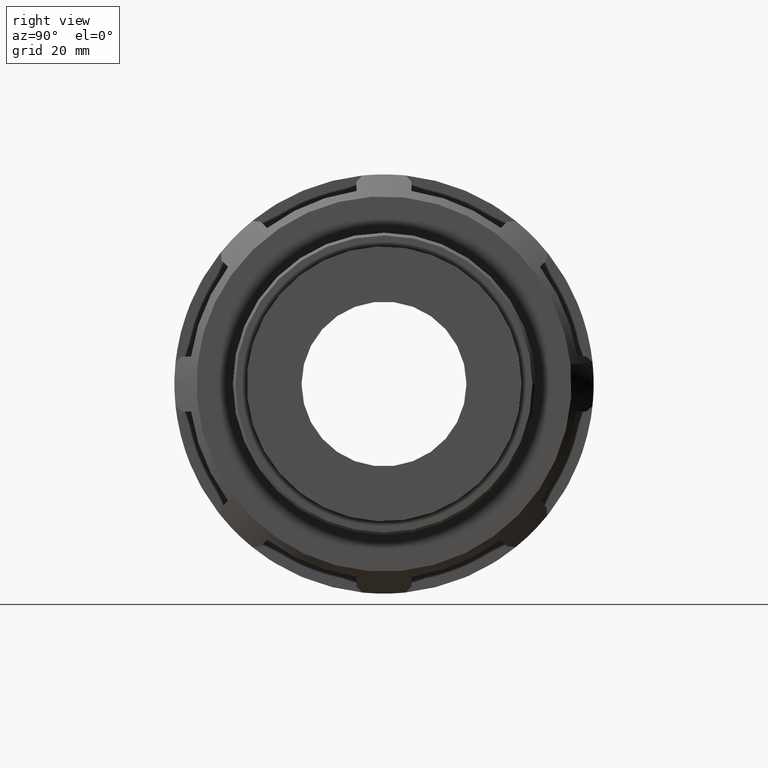
[diagram: clean part render]
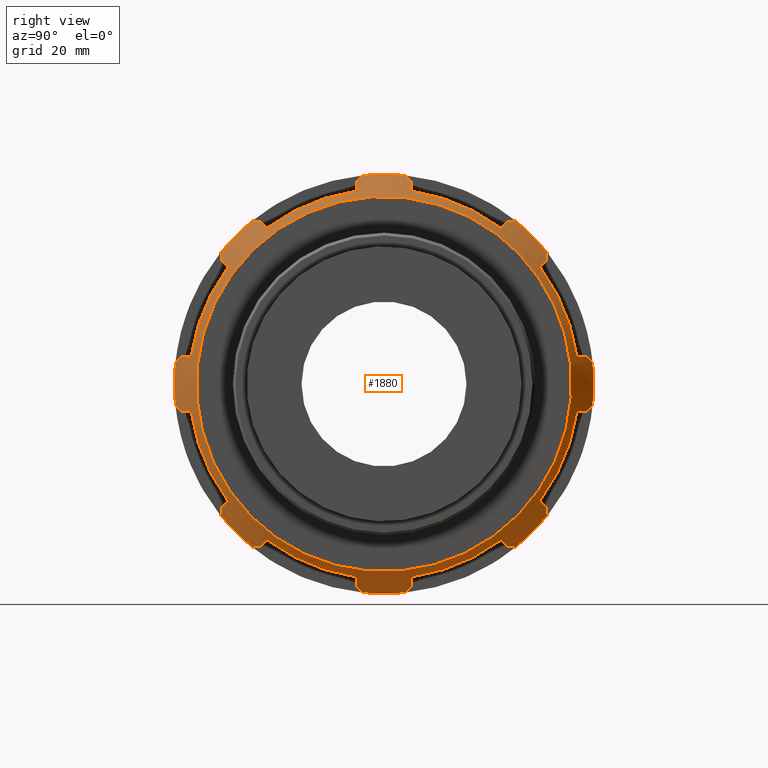
[diagram: same view with one face highlighted and labeled with its STEP entity id]
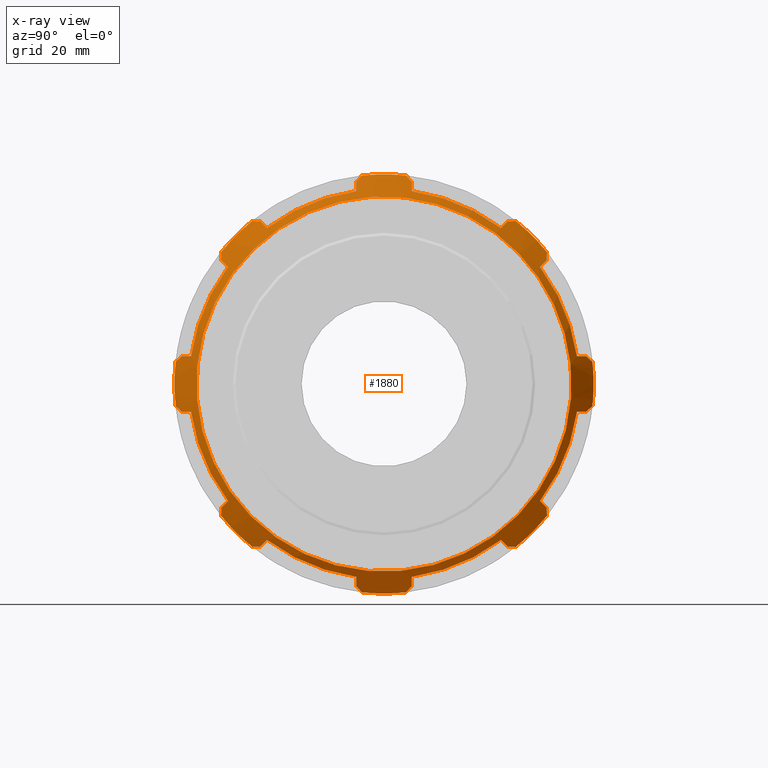
[diagram: x-ray of the same camera — body ghosted, the highlighted face saturated]
A machine part, right view. The second image highlights one B-rep face of the part: STEP entity #1880.
The next image is the same camera in x-ray: the body ghosted, the highlighted face saturated — about 0% of this face is hidden behind the body in this view.
In plain terms, the highlighted conical surface has half-angle 45 deg.
Its self-contained STEP definition (entity closure, byte-faithful):
#15=(
BOUNDED_CURVE()
B_SPLINE_CURVE(2,(#2909,#2910,#2911),.UNSPECIFIED.,.F.,.F.)
B_SPLINE_CURVE_WITH_KNOTS((3,3),(0.,0.296317603696153),.UNSPECIFIED.)
CURVE()
GEOMETRIC_REPRESENTATION_ITEM()
RATIONAL_B_SPLINE_CURVE((1.,1.0008870912547,1.00137929450637))
REPRESENTATION_ITEM('')
);
#16=(
BOUNDED_CURVE()
B_SPLINE_CURVE(2,(#2923,#2924,#2925),.UNSPECIFIED.,.F.,.F.)
B_SPLINE_CURVE_WITH_KNOTS((3,3),(1.03500040461365,1.33131800830983),
 .UNSPECIFIED.)
CURVE()
GEOMETRIC_REPRESENTATION_ITEM()
RATIONAL_B_SPLINE_CURVE((1.00137929450633,1.00088709125468,1.))
REPRESENTATION_ITEM('')
);
#17=(
BOUNDED_CURVE()
B_SPLINE_CURVE(2,(#2927,#2928,#2929),.UNSPECIFIED.,.F.,.F.)
B_SPLINE_CURVE_WITH_KNOTS((3,3),(5.92224695640004,6.45741023571535),
 .UNSPECIFIED.)
CURVE()
GEOMETRIC_REPRESENTATION_ITEM()
RATIONAL_B_SPLINE_CURVE((1.01093084007107,1.00842916952625,1.00538611331488))
REPRESENTATION_ITEM('')
);
#18=(
BOUNDED_CURVE()
B_SPLINE_CURVE(2,(#2933,#2934,#2935),.UNSPECIFIED.,.F.,.F.)
B_SPLINE_CURVE_WITH_KNOTS((3,3),(0.441248220962776,0.97641150027779),
 .UNSPECIFIED.)
CURVE()
GEOMETRIC_REPRESENTATION_ITEM()
RATIONAL_B_SPLINE_CURVE((1.00538611331492,1.00842916952631,1.01093084007114))
REPRESENTATION_ITEM('')
);
#19=(
BOUNDED_CURVE()
B_SPLINE_CURVE(2,(#2937,#2938,#2939),.UNSPECIFIED.,.F.,.F.)
B_SPLINE_CURVE_WITH_KNOTS((3,3),(0.,0.296317603696131),.UNSPECIFIED.)
CURVE()
GEOMETRIC_REPRESENTATION_ITEM()
RATIONAL_B_SPLINE_CURVE((1.,1.00088709125474,1.00137929450642))
REPRESENTATION_ITEM('')
);
#20=(
BOUNDED_CURVE()
B_SPLINE_CURVE(2,(#2943,#2944,#2945),.UNSPECIFIED.,.F.,.F.)
B_SPLINE_CURVE_WITH_KNOTS((3,3),(1.03500040461368,1.33131800830983),
 .UNSPECIFIED.)
CURVE()
GEOMETRIC_REPRESENTATION_ITEM()
RATIONAL_B_SPLINE_CURVE((1.00137929450641,1.00088709125473,1.))
REPRESENTATION_ITEM('')
);
#21=(
BOUNDED_CURVE()
B_SPLINE_CURVE(2,(#2947,#2948,#2949),.UNSPECIFIED.,.F.,.F.)
B_SPLINE_CURVE_WITH_KNOTS((3,3),(5.92224695640033,6.45741023571553),
 .UNSPECIFIED.)
CURVE()
GEOMETRIC_REPRESENTATION_ITEM()
RATIONAL_B_SPLINE_CURVE((1.01093084007113,1.0084291695263,1.00538611331492))
REPRESENTATION_ITEM('')
);
#22=(
BOUNDED_CURVE()
B_SPLINE_CURVE(2,(#2953,#2954,#2955),.UNSPECIFIED.,.F.,.F.)
B_SPLINE_CURVE_WITH_KNOTS((3,3),(0.441248220959732,0.976411500271163),
 .UNSPECIFIED.)
CURVE()
GEOMETRIC_REPRESENTATION_ITEM()
RATIONAL_B_SPLINE_CURVE((1.0053861133142,1.00842916952518,1.01093084006968))
REPRESENTATION_ITEM('')
);
#23=(
BOUNDED_CURVE()
B_SPLINE_CURVE(2,(#2957,#2958,#2959),.UNSPECIFIED.,.F.,.F.)
B_SPLINE_CURVE_WITH_KNOTS((3,3),(0.,0.296317603696123),.UNSPECIFIED.)
CURVE()
GEOMETRIC_REPRESENTATION_ITEM()
RATIONAL_B_SPLINE_CURVE((1.,1.00088709125475,1.00137929450644))
REPRESENTATION_ITEM('')
);
#24=(
BOUNDED_CURVE()
B_SPLINE_CURVE(2,(#2963,#2964,#2965),.UNSPECIFIED.,.F.,.F.)
B_SPLINE_CURVE_WITH_KNOTS((3,3),(1.03500040461367,1.33131800830983),
 .UNSPECIFIED.)
CURVE()
GEOMETRIC_REPRESENTATION_ITEM()
RATIONAL_B_SPLINE_CURVE((1.00137929450636,1.00088709125469,1.))
REPRESENTATION_ITEM('')
);
#25=(
BOUNDED_CURVE()
B_SPLINE_CURVE(2,(#2967,#2968,#2969),.UNSPECIFIED.,.F.,.F.)
B_SPLINE_CURVE_WITH_KNOTS((3,3),(5.92224695641519,6.45741023572233),
 .UNSPECIFIED.)
CURVE()
GEOMETRIC_REPRESENTATION_ITEM()
RATIONAL_B_SPLINE_CURVE((1.01093084006777,1.0084291695237,1.00538611331325))
REPRESENTATION_ITEM('')
);
#26=(
BOUNDED_CURVE()
B_SPLINE_CURVE(2,(#2973,#2974,#2975),.UNSPECIFIED.,.F.,.F.)
B_SPLINE_CURVE_WITH_KNOTS((3,3),(0.441248220963082,0.976411500278279),
 .UNSPECIFIED.)
CURVE()
GEOMETRIC_REPRESENTATION_ITEM()
RATIONAL_B_SPLINE_CURVE((1.00538611331483,1.00842916952616,1.01093084007095))
REPRESENTATION_ITEM('')
);
#27=(
BOUNDED_CURVE()
B_SPLINE_CURVE(2,(#2977,#2978,#2979),.UNSPECIFIED.,.F.,.F.)
B_SPLINE_CURVE_WITH_KNOTS((3,3),(0.,0.296317603696127),.UNSPECIFIED.)
CURVE()
GEOMETRIC_REPRESENTATION_ITEM()
RATIONAL_B_SPLINE_CURVE((1.,1.00088709125473,1.00137929450641))
REPRESENTATION_ITEM('')
);
#28=(
BOUNDED_CURVE()
B_SPLINE_CURVE(2,(#2983,#2984,#2985),.UNSPECIFIED.,.F.,.F.)
B_SPLINE_CURVE_WITH_KNOTS((3,3),(1.0350004046137,1.33131800830982),
 .UNSPECIFIED.)
CURVE()
GEOMETRIC_REPRESENTATION_ITEM()
RATIONAL_B_SPLINE_CURVE((1.00137929450644,1.00088709125475,1.))
REPRESENTATION_ITEM('')
);
#29=(
BOUNDED_CURVE()
B_SPLINE_CURVE(2,(#2987,#2988,#2989),.UNSPECIFIED.,.F.,.F.)
B_SPLINE_CURVE_WITH_KNOTS((3,3),(5.92224695640035,6.45741023571554),
 .UNSPECIFIED.)
CURVE()
GEOMETRIC_REPRESENTATION_ITEM()
RATIONAL_B_SPLINE_CURVE((1.01093084007114,1.0084291695263,1.00538611331492))
REPRESENTATION_ITEM('')
);
#30=(
BOUNDED_CURVE()
B_SPLINE_CURVE(2,(#2993,#2994,#2995),.UNSPECIFIED.,.F.,.F.)
B_SPLINE_CURVE_WITH_KNOTS((3,3),(0.441248220962538,0.976411500277454),
 .UNSPECIFIED.)
CURVE()
GEOMETRIC_REPRESENTATION_ITEM()
RATIONAL_B_SPLINE_CURVE((1.00538611331504,1.0084291695265,1.01093084007139))
REPRESENTATION_ITEM('')
);
#31=(
BOUNDED_CURVE()
B_SPLINE_CURVE(2,(#2997,#2998,#2999),.UNSPECIFIED.,.F.,.F.)
B_SPLINE_CURVE_WITH_KNOTS((3,3),(0.,0.296317603696122),.UNSPECIFIED.)
CURVE()
GEOMETRIC_REPRESENTATION_ITEM()
RATIONAL_B_SPLINE_CURVE((1.,1.00088709125475,1.00137929450644))
REPRESENTATION_ITEM('')
);
#32=(
BOUNDED_CURVE()
B_SPLINE_CURVE(2,(#3003,#3004,#3005),.UNSPECIFIED.,.F.,.F.)
B_SPLINE_CURVE_WITH_KNOTS((3,3),(1.03500040461368,1.33131800830983),
 .UNSPECIFIED.)
CURVE()
GEOMETRIC_REPRESENTATION_ITEM()
RATIONAL_B_SPLINE_CURVE((1.00137929450639,1.00088709125472,1.))
REPRESENTATION_ITEM('')
);
#33=(
BOUNDED_CURVE()
B_SPLINE_CURVE(2,(#3007,#3008,#3009),.UNSPECIFIED.,.F.,.F.)
B_SPLINE_CURVE_WITH_KNOTS((3,3),(5.92224695641462,6.45741023572197),
 .UNSPECIFIED.)
CURVE()
GEOMETRIC_REPRESENTATION_ITEM()
RATIONAL_B_SPLINE_CURVE((1.01093084006751,1.0084291695235,1.00538611331312))
REPRESENTATION_ITEM('')
);
#34=(
BOUNDED_CURVE()
B_SPLINE_CURVE(2,(#3013,#3014,#3015),.UNSPECIFIED.,.F.,.F.)
B_SPLINE_CURVE_WITH_KNOTS((3,3),(0.441248220963007,0.976411500278079),
 .UNSPECIFIED.)
CURVE()
GEOMETRIC_REPRESENTATION_ITEM()
RATIONAL_B_SPLINE_CURVE((1.00538611331478,1.00842916952608,1.01093084007085))
REPRESENTATION_ITEM('')
);
#35=(
BOUNDED_CURVE()
B_SPLINE_CURVE(2,(#3017,#3018,#3019),.UNSPECIFIED.,.F.,.F.)
B_SPLINE_CURVE_WITH_KNOTS((3,3),(0.,0.296317603696161),.UNSPECIFIED.)
CURVE()
GEOMETRIC_REPRESENTATION_ITEM()
RATIONAL_B_SPLINE_CURVE((1.,1.0008870912547,1.00137929450636))
REPRESENTATION_ITEM('')
);
#36=(
BOUNDED_CURVE()
B_SPLINE_CURVE(2,(#3023,#3024,#3025),.UNSPECIFIED.,.F.,.F.)
B_SPLINE_CURVE_WITH_KNOTS((3,3),(1.03500040461369,1.33131800830983),
 .UNSPECIFIED.)
CURVE()
GEOMETRIC_REPRESENTATION_ITEM()
RATIONAL_B_SPLINE_CURVE((1.0013792945064,1.00088709125472,1.))
REPRESENTATION_ITEM('')
);
#37=(
BOUNDED_CURVE()
B_SPLINE_CURVE(2,(#3027,#3028,#3029),.UNSPECIFIED.,.F.,.F.)
B_SPLINE_CURVE_WITH_KNOTS((3,3),(5.92224695640072,6.45741023571574),
 .UNSPECIFIED.)
CURVE()
GEOMETRIC_REPRESENTATION_ITEM()
RATIONAL_B_SPLINE_CURVE((1.01093084007118,1.00842916952634,1.00538611331494))
REPRESENTATION_ITEM('')
);
#38=(
BOUNDED_CURVE()
B_SPLINE_CURVE(2,(#3033,#3034,#3035),.UNSPECIFIED.,.F.,.F.)
B_SPLINE_CURVE_WITH_KNOTS((3,3),(0.441248220959889,0.976411500271393),
 .UNSPECIFIED.)
CURVE()
GEOMETRIC_REPRESENTATION_ITEM()
RATIONAL_B_SPLINE_CURVE((1.00538611331413,1.00842916952507,1.01093084006954))
REPRESENTATION_ITEM('')
);
#39=(
BOUNDED_CURVE()
B_SPLINE_CURVE(2,(#3037,#3038,#3039),.UNSPECIFIED.,.F.,.F.)
B_SPLINE_CURVE_WITH_KNOTS((3,3),(0.,0.29631760369613),.UNSPECIFIED.)
CURVE()
GEOMETRIC_REPRESENTATION_ITEM()
RATIONAL_B_SPLINE_CURVE((1.,1.00088709125476,1.00137929450645))
REPRESENTATION_ITEM('')
);
#40=(
BOUNDED_CURVE()
B_SPLINE_CURVE(2,(#3043,#3044,#3045),.UNSPECIFIED.,.F.,.F.)
B_SPLINE_CURVE_WITH_KNOTS((3,3),(1.03500040461367,1.33131800830983),
 .UNSPECIFIED.)
CURVE()
GEOMETRIC_REPRESENTATION_ITEM()
RATIONAL_B_SPLINE_CURVE((1.00137929450639,1.00088709125471,1.))
REPRESENTATION_ITEM('')
);
#41=(
BOUNDED_CURVE()
B_SPLINE_CURVE(2,(#3047,#3048,#3049),.UNSPECIFIED.,.F.,.F.)
B_SPLINE_CURVE_WITH_KNOTS((3,3),(5.92224695639378,6.45741023571239),
 .UNSPECIFIED.)
CURVE()
GEOMETRIC_REPRESENTATION_ITEM()
RATIONAL_B_SPLINE_CURVE((1.01093084007212,1.00842916952707,1.00538611331541))
REPRESENTATION_ITEM('')
);
#42=(
BOUNDED_CURVE()
B_SPLINE_CURVE(2,(#3053,#3054,#3055),.UNSPECIFIED.,.F.,.F.)
B_SPLINE_CURVE_WITH_KNOTS((3,3),(0.441248220963007,0.976411500278079),
 .UNSPECIFIED.)
CURVE()
GEOMETRIC_REPRESENTATION_ITEM()
RATIONAL_B_SPLINE_CURVE((1.00538611331478,1.00842916952608,1.01093084007085))
REPRESENTATION_ITEM('')
);
#43=(
BOUNDED_CURVE()
B_SPLINE_CURVE(2,(#3057,#3058,#3059),.UNSPECIFIED.,.F.,.F.)
B_SPLINE_CURVE_WITH_KNOTS((3,3),(0.,0.296317603696118),.UNSPECIFIED.)
CURVE()
GEOMETRIC_REPRESENTATION_ITEM()
RATIONAL_B_SPLINE_CURVE((1.,1.00088709125475,1.00137929450644))
REPRESENTATION_ITEM('')
);
#44=(
BOUNDED_CURVE()
B_SPLINE_CURVE(2,(#3063,#3064,#3065),.UNSPECIFIED.,.F.,.F.)
B_SPLINE_CURVE_WITH_KNOTS((3,3),(1.03500040461369,1.33131800830983),
 .UNSPECIFIED.)
CURVE()
GEOMETRIC_REPRESENTATION_ITEM()
RATIONAL_B_SPLINE_CURVE((1.0013792945064,1.00088709125472,1.))
REPRESENTATION_ITEM('')
);
#45=(
BOUNDED_CURVE()
B_SPLINE_CURVE(2,(#3067,#3068,#3069),.UNSPECIFIED.,.F.,.F.)
B_SPLINE_CURVE_WITH_KNOTS((3,3),(5.92224695640071,6.45741023571574),
 .UNSPECIFIED.)
CURVE()
GEOMETRIC_REPRESENTATION_ITEM()
RATIONAL_B_SPLINE_CURVE((1.01093084007118,1.00842916952634,1.00538611331494))
REPRESENTATION_ITEM('')
);
#46=(
BOUNDED_CURVE()
B_SPLINE_CURVE(2,(#3072,#3073,#3074),.UNSPECIFIED.,.F.,.F.)
B_SPLINE_CURVE_WITH_KNOTS((3,3),(0.441248220959914,0.976411500271437),
 .UNSPECIFIED.)
CURVE()
GEOMETRIC_REPRESENTATION_ITEM()
RATIONAL_B_SPLINE_CURVE((1.00538611331412,1.00842916952506,1.01093084006953))
REPRESENTATION_ITEM('')
);
#49=CONICAL_SURFACE('',#2020,63.48464,45.);
#57=FACE_BOUND('',#341,.T.);
#105=CIRCLE('',#2021,59.96928);
#106=CIRCLE('',#2022,67.);
#107=CIRCLE('',#2023,62.31);
#108=CIRCLE('',#2024,67.);
#109=CIRCLE('',#2025,62.31);
#110=CIRCLE('',#2026,67.);
#111=CIRCLE('',#2027,62.31);
#112=CIRCLE('',#2028,67.);
#113=CIRCLE('',#2029,62.31);
#114=CIRCLE('',#2030,67.);
#115=CIRCLE('',#2031,62.31);
#116=CIRCLE('',#2032,67.);
#117=CIRCLE('',#2033,62.31);
#118=CIRCLE('',#2034,67.);
#119=CIRCLE('',#2035,62.31);
#120=CIRCLE('',#2036,67.);
#121=CIRCLE('',#2037,62.31);
#226=FACE_OUTER_BOUND('',#340,.T.);
#340=EDGE_LOOP('',(#1445));
#341=EDGE_LOOP('',(#1446,#1447,#1448,#1449,#1450,#1451,#1452,#1453,#1454,
#1455,#1456,#1457,#1458,#1459,#1460,#1461,#1462,#1463,#1464,#1465,#1466,
#1467,#1468,#1469,#1470,#1471,#1472,#1473,#1474,#1475,#1476,#1477,#1478,
#1479,#1480,#1481,#1482,#1483,#1484,#1485,#1486,#1487,#1488,#1489,#1490,
#1491,#1492,#1493));
#829=VERTEX_POINT('',#2907);
#830=VERTEX_POINT('',#2908);
#833=VERTEX_POINT('',#2918);
#834=VERTEX_POINT('',#2920);
#835=VERTEX_POINT('',#2922);
#836=VERTEX_POINT('',#2926);
#837=VERTEX_POINT('',#2930);
#838=VERTEX_POINT('',#2932);
#839=VERTEX_POINT('',#2936);
#840=VERTEX_POINT('',#2940);
#841=VERTEX_POINT('',#2942);
#842=VERTEX_POINT('',#2946);
#843=VERTEX_POINT('',#2950);
#844=VERTEX_POINT('',#2952);
#845=VERTEX_POINT('',#2956);
#846=VERTEX_POINT('',#2960);
#847=VERTEX_POINT('',#2962);
#848=VERTEX_POINT('',#2966);
#849=VERTEX_POINT('',#2970);
#850=VERTEX_POINT('',#2972);
#851=VERTEX_POINT('',#2976);
#852=VERTEX_POINT('',#2980);
#853=VERTEX_POINT('',#2982);
#854=VERTEX_POINT('',#2986);
#855=VERTEX_POINT('',#2990);
#856=VERTEX_POINT('',#2992);
#857=VERTEX_POINT('',#2996);
#858=VERTEX_POINT('',#3000);
#859=VERTEX_POINT('',#3002);
#860=VERTEX_POINT('',#3006);
#861=VERTEX_POINT('',#3010);
#862=VERTEX_POINT('',#3012);
#863=VERTEX_POINT('',#3016);
#864=VERTEX_POINT('',#3020);
#865=VERTEX_POINT('',#3022);
#866=VERTEX_POINT('',#3026);
#867=VERTEX_POINT('',#3030);
#868=VERTEX_POINT('',#3032);
#869=VERTEX_POINT('',#3036);
#870=VERTEX_POINT('',#3040);
#871=VERTEX_POINT('',#3042);
#872=VERTEX_POINT('',#3046);
#873=VERTEX_POINT('',#3050);
#874=VERTEX_POINT('',#3052);
#875=VERTEX_POINT('',#3056);
#876=VERTEX_POINT('',#3060);
#877=VERTEX_POINT('',#3062);
#878=VERTEX_POINT('',#3066);
#879=VERTEX_POINT('',#3070);
#1055=EDGE_CURVE('',#829,#830,#15,.T.);
#1059=EDGE_CURVE('',#833,#833,#105,.T.);
#1060=EDGE_CURVE('',#829,#834,#106,.T.);
#1061=EDGE_CURVE('',#835,#834,#16,.T.);
#1062=EDGE_CURVE('',#835,#836,#17,.T.);
#1063=EDGE_CURVE('',#836,#837,#107,.T.);
#1064=EDGE_CURVE('',#837,#838,#18,.T.);
#1065=EDGE_CURVE('',#839,#838,#19,.T.);
#1066=EDGE_CURVE('',#839,#840,#108,.T.);
#1067=EDGE_CURVE('',#841,#840,#20,.T.);
#1068=EDGE_CURVE('',#841,#842,#21,.T.);
#1069=EDGE_CURVE('',#842,#843,#109,.T.);
#1070=EDGE_CURVE('',#843,#844,#22,.T.);
#1071=EDGE_CURVE('',#845,#844,#23,.T.);
#1072=EDGE_CURVE('',#845,#846,#110,.T.);
#1073=EDGE_CURVE('',#847,#846,#24,.T.);
#1074=EDGE_CURVE('',#847,#848,#25,.T.);
#1075=EDGE_CURVE('',#848,#849,#111,.T.);
#1076=EDGE_CURVE('',#849,#850,#26,.T.);
#1077=EDGE_CURVE('',#851,#850,#27,.T.);
#1078=EDGE_CURVE('',#851,#852,#112,.T.);
#1079=EDGE_CURVE('',#853,#852,#28,.T.);
#1080=EDGE_CURVE('',#853,#854,#29,.T.);
#1081=EDGE_CURVE('',#854,#855,#113,.T.);
#1082=EDGE_CURVE('',#855,#856,#30,.T.);
#1083=EDGE_CURVE('',#857,#856,#31,.T.);
#1084=EDGE_CURVE('',#857,#858,#114,.T.);
#1085=EDGE_CURVE('',#859,#858,#32,.T.);
#1086=EDGE_CURVE('',#859,#860,#33,.T.);
#1087=EDGE_CURVE('',#860,#861,#115,.T.);
#1088=EDGE_CURVE('',#861,#862,#34,.T.);
#1089=EDGE_CURVE('',#863,#862,#35,.T.);
#1090=EDGE_CURVE('',#863,#864,#116,.T.);
#1091=EDGE_CURVE('',#865,#864,#36,.T.);
#1092=EDGE_CURVE('',#865,#866,#37,.T.);
#1093=EDGE_CURVE('',#866,#867,#117,.T.);
#1094=EDGE_CURVE('',#867,#868,#38,.T.);
#1095=EDGE_CURVE('',#869,#868,#39,.T.);
#1096=EDGE_CURVE('',#869,#870,#118,.T.);
#1097=EDGE_CURVE('',#871,#870,#40,.T.);
#1098=EDGE_CURVE('',#871,#872,#41,.T.);
#1099=EDGE_CURVE('',#872,#873,#119,.T.);
#1100=EDGE_CURVE('',#873,#874,#42,.T.);
#1101=EDGE_CURVE('',#875,#874,#43,.T.);
#1102=EDGE_CURVE('',#875,#876,#120,.T.);
#1103=EDGE_CURVE('',#877,#876,#44,.T.);
#1104=EDGE_CURVE('',#877,#878,#45,.T.);
#1105=EDGE_CURVE('',#878,#879,#121,.T.);
#1106=EDGE_CURVE('',#879,#830,#46,.T.);
#1445=ORIENTED_EDGE('',*,*,#1059,.T.);
#1446=ORIENTED_EDGE('',*,*,#1055,.F.);
#1447=ORIENTED_EDGE('',*,*,#1060,.T.);
#1448=ORIENTED_EDGE('',*,*,#1061,.F.);
#1449=ORIENTED_EDGE('',*,*,#1062,.T.);
#1450=ORIENTED_EDGE('',*,*,#1063,.T.);
#1451=ORIENTED_EDGE('',*,*,#1064,.T.);
#1452=ORIENTED_EDGE('',*,*,#1065,.F.);
#1453=ORIENTED_EDGE('',*,*,#1066,.T.);
#1454=ORIENTED_EDGE('',*,*,#1067,.F.);
#1455=ORIENTED_EDGE('',*,*,#1068,.T.);
#1456=ORIENTED_EDGE('',*,*,#1069,.T.);
#1457=ORIENTED_EDGE('',*,*,#1070,.T.);
#1458=ORIENTED_EDGE('',*,*,#1071,.F.);
#1459=ORIENTED_EDGE('',*,*,#1072,.T.);
#1460=ORIENTED_EDGE('',*,*,#1073,.F.);
#1461=ORIENTED_EDGE('',*,*,#1074,.T.);
#1462=ORIENTED_EDGE('',*,*,#1075,.T.);
#1463=ORIENTED_EDGE('',*,*,#1076,.T.);
#1464=ORIENTED_EDGE('',*,*,#1077,.F.);
#1465=ORIENTED_EDGE('',*,*,#1078,.T.);
#1466=ORIENTED_EDGE('',*,*,#1079,.F.);
#1467=ORIENTED_EDGE('',*,*,#1080,.T.);
#1468=ORIENTED_EDGE('',*,*,#1081,.T.);
#1469=ORIENTED_EDGE('',*,*,#1082,.T.);
#1470=ORIENTED_EDGE('',*,*,#1083,.F.);
#1471=ORIENTED_EDGE('',*,*,#1084,.T.);
#1472=ORIENTED_EDGE('',*,*,#1085,.F.);
#1473=ORIENTED_EDGE('',*,*,#1086,.T.);
#1474=ORIENTED_EDGE('',*,*,#1087,.T.);
#1475=ORIENTED_EDGE('',*,*,#1088,.T.);
#1476=ORIENTED_EDGE('',*,*,#1089,.F.);
#1477=ORIENTED_EDGE('',*,*,#1090,.T.);
#1478=ORIENTED_EDGE('',*,*,#1091,.F.);
#1479=ORIENTED_EDGE('',*,*,#1092,.T.);
#1480=ORIENTED_EDGE('',*,*,#1093,.T.);
#1481=ORIENTED_EDGE('',*,*,#1094,.T.);
#1482=ORIENTED_EDGE('',*,*,#1095,.F.);
#1483=ORIENTED_EDGE('',*,*,#1096,.T.);
#1484=ORIENTED_EDGE('',*,*,#1097,.F.);
#1485=ORIENTED_EDGE('',*,*,#1098,.T.);
#1486=ORIENTED_EDGE('',*,*,#1099,.T.);
#1487=ORIENTED_EDGE('',*,*,#1100,.T.);
#1488=ORIENTED_EDGE('',*,*,#1101,.F.);
#1489=ORIENTED_EDGE('',*,*,#1102,.T.);
#1490=ORIENTED_EDGE('',*,*,#1103,.F.);
#1491=ORIENTED_EDGE('',*,*,#1104,.T.);
#1492=ORIENTED_EDGE('',*,*,#1105,.T.);
#1493=ORIENTED_EDGE('',*,*,#1106,.T.);
#1880=ADVANCED_FACE('',(#226,#57),#49,.T.);
#2020=AXIS2_PLACEMENT_3D('',#2917,#2368,#2369);
#2021=AXIS2_PLACEMENT_3D('',#2919,#2370,#2371);
#2022=AXIS2_PLACEMENT_3D('',#2921,#2372,#2373);
#2023=AXIS2_PLACEMENT_3D('',#2931,#2374,#2375);
#2024=AXIS2_PLACEMENT_3D('',#2941,#2376,#2377);
#2025=AXIS2_PLACEMENT_3D('',#2951,#2378,#2379);
#2026=AXIS2_PLACEMENT_3D('',#2961,#2380,#2381);
#2027=AXIS2_PLACEMENT_3D('',#2971,#2382,#2383);
#2028=AXIS2_PLACEMENT_3D('',#2981,#2384,#2385);
#2029=AXIS2_PLACEMENT_3D('',#2991,#2386,#2387);
#2030=AXIS2_PLACEMENT_3D('',#3001,#2388,#2389);
#2031=AXIS2_PLACEMENT_3D('',#3011,#2390,#2391);
#2032=AXIS2_PLACEMENT_3D('',#3021,#2392,#2393);
#2033=AXIS2_PLACEMENT_3D('',#3031,#2394,#2395);
#2034=AXIS2_PLACEMENT_3D('',#3041,#2396,#2397);
#2035=AXIS2_PLACEMENT_3D('',#3051,#2398,#2399);
#2036=AXIS2_PLACEMENT_3D('',#3061,#2400,#2401);
#2037=AXIS2_PLACEMENT_3D('',#3071,#2402,#2403);
#2368=DIRECTION('center_axis',(-1.,0.,0.));
#2369=DIRECTION('ref_axis',(0.,1.,0.));
#2370=DIRECTION('center_axis',(-1.,0.,0.));
#2371=DIRECTION('ref_axis',(0.,1.,0.));
#2372=DIRECTION('center_axis',(1.,0.,0.));
#2373=DIRECTION('ref_axis',(0.,1.,0.));
#2374=DIRECTION('center_axis',(1.,0.,0.));
#2375=DIRECTION('ref_axis',(0.,1.,0.));
#2376=DIRECTION('center_axis',(1.,0.,0.));
#2377=DIRECTION('ref_axis',(0.,1.,0.));
#2378=DIRECTION('center_axis',(1.,0.,0.));
#2379=DIRECTION('ref_axis',(0.,1.,0.));
#2380=DIRECTION('center_axis',(1.,0.,0.));
#2381=DIRECTION('ref_axis',(0.,-1.,0.));
#2382=DIRECTION('center_axis',(1.,0.,0.));
#2383=DIRECTION('ref_axis',(0.,1.,0.));
#2384=DIRECTION('center_axis',(1.,0.,0.));
#2385=DIRECTION('ref_axis',(0.,-1.,0.));
#2386=DIRECTION('center_axis',(1.,0.,0.));
#2387=DIRECTION('ref_axis',(0.,1.,0.));
#2388=DIRECTION('center_axis',(1.,0.,0.));
#2389=DIRECTION('ref_axis',(0.,-1.,0.));
#2390=DIRECTION('center_axis',(1.,0.,0.));
#2391=DIRECTION('ref_axis',(0.,1.,0.));
#2392=DIRECTION('center_axis',(1.,0.,0.));
#2393=DIRECTION('ref_axis',(0.,1.,0.));
#2394=DIRECTION('center_axis',(1.,0.,0.));
#2395=DIRECTION('ref_axis',(0.,1.,0.));
#2396=DIRECTION('center_axis',(1.,0.,0.));
#2397=DIRECTION('ref_axis',(0.,1.,0.));
#2398=DIRECTION('center_axis',(1.,0.,0.));
#2399=DIRECTION('ref_axis',(0.,1.,0.));
#2400=DIRECTION('center_axis',(1.,0.,0.));
#2401=DIRECTION('ref_axis',(0.,1.,0.));
#2402=DIRECTION('center_axis',(1.,0.,0.));
#2403=DIRECTION('ref_axis',(0.,1.,0.));
#2907=CARTESIAN_POINT('',(45.71428,52.0938453372386,42.1334935411231));
#2908=CARTESIAN_POINT('',(47.4563661413246,51.938287998079,39.5096135265192));
#2909=CARTESIAN_POINT('Ctrl Pts',(45.71428,52.0938453372386,42.1334935411231));
#2910=CARTESIAN_POINT('Ctrl Pts',(46.6114422805274,52.0150421759032,40.8042728098306));
#2911=CARTESIAN_POINT('Ctrl Pts',(47.4563661413246,51.938287998079,39.5096135265192));
#2917=CARTESIAN_POINT('Origin',(49.22964,0.,0.));
#2918=CARTESIAN_POINT('',(52.745,35.7325253951631,48.1611998667228));
#2919=CARTESIAN_POINT('Origin',(52.745,0.,0.));
#2920=CARTESIAN_POINT('',(45.71428,42.1334935411231,52.0938453372386));
#2921=CARTESIAN_POINT('Origin',(45.71428,0.,0.));
#2922=CARTESIAN_POINT('',(47.4563661413246,39.5096135265192,51.9382879980789));
#2923=CARTESIAN_POINT('Ctrl Pts',(47.4563661413246,39.5096135265192,51.9382879980789));
#2924=CARTESIAN_POINT('Ctrl Pts',(46.6114422805274,40.8042728098307,52.0150421759031));
#2925=CARTESIAN_POINT('Ctrl Pts',(45.71428,42.1334935411231,52.0938453372386));
#2926=CARTESIAN_POINT('',(50.40428,37.4050399115385,49.8337143830982));
#2927=CARTESIAN_POINT('Ctrl Pts',(47.4563661413246,39.5096135265192,51.9382879980789));
#2928=CARTESIAN_POINT('Ctrl Pts',(48.9650436360998,38.4330098609001,50.8616843324598));
#2929=CARTESIAN_POINT('Ctrl Pts',(50.40428,37.4050399115385,49.8337143830982));
#2930=CARTESIAN_POINT('',(50.40428,8.7884,61.6871147440047));
#2931=CARTESIAN_POINT('Origin',(50.40428,0.,0.));
#2932=CARTESIAN_POINT('',(47.4563661413246,8.78839999999999,64.663431293323));
#2933=CARTESIAN_POINT('Ctrl Pts',(50.40428,8.7884,61.6871147440047));
#2934=CARTESIAN_POINT('Ctrl Pts',(48.9650436360988,8.7884,63.1408837881048));
#2935=CARTESIAN_POINT('Ctrl Pts',(47.4563661413246,8.78839999999999,64.663431293323));
#2936=CARTESIAN_POINT('',(45.71428,7.04303229803687,66.6287902940524));
#2937=CARTESIAN_POINT('Ctrl Pts',(45.71428,7.04303229803688,66.6287902940524));
#2938=CARTESIAN_POINT('Ctrl Pts',(46.6114422805274,7.92721104106838,65.6331670515024));
#2939=CARTESIAN_POINT('Ctrl Pts',(47.4563661413246,8.78839999999999,64.663431293323));
#2940=CARTESIAN_POINT('',(45.71428,-7.04303229803688,66.6287902940524));
#2941=CARTESIAN_POINT('Origin',(45.71428,0.,0.));
#2942=CARTESIAN_POINT('',(47.4563661413246,-8.78840000000001,64.663431293323));
#2943=CARTESIAN_POINT('Ctrl Pts',(47.4563661413246,-8.78840000000001,64.663431293323));
#2944=CARTESIAN_POINT('Ctrl Pts',(46.6114422805274,-7.92721104106837,65.6331670515024));
#2945=CARTESIAN_POINT('Ctrl Pts',(45.71428,-7.04303229803689,66.6287902940524));
#2946=CARTESIAN_POINT('',(50.40428,-8.78840000000001,61.6871147440047));
#2947=CARTESIAN_POINT('Ctrl Pts',(47.4563661413246,-8.78840000000001,64.663431293323));
#2948=CARTESIAN_POINT('Ctrl Pts',(48.9650436360996,-8.78840000000001,63.1408837881039));
#2949=CARTESIAN_POINT('Ctrl Pts',(50.40428,-8.78840000000001,61.6871147440047));
#2950=CARTESIAN_POINT('',(50.40428,-37.4050399115385,49.8337143830982));
#2951=CARTESIAN_POINT('Origin',(50.40428,0.,0.));
#2952=CARTESIAN_POINT('',(47.4563661413246,-39.5096135265192,51.9382879980789));
#2953=CARTESIAN_POINT('Ctrl Pts',(50.40428,-37.4050399115385,49.8337143830982));
#2954=CARTESIAN_POINT('Ctrl Pts',(48.965043636098,-38.4330098609014,50.8616843324611));
#2955=CARTESIAN_POINT('Ctrl Pts',(47.4563661413246,-39.5096135265192,51.9382879980789));
#2956=CARTESIAN_POINT('',(45.71428,-42.1334935411231,52.0938453372386));
#2957=CARTESIAN_POINT('Ctrl Pts',(45.71428,-42.1334935411231,52.0938453372386));
#2958=CARTESIAN_POINT('Ctrl Pts',(46.6114422805275,-40.8042728098305,52.0150421759031));
#2959=CARTESIAN_POINT('Ctrl Pts',(47.4563661413246,-39.5096135265192,51.9382879980789));
#2960=CARTESIAN_POINT('',(45.71428,-52.0938453372386,42.1334935411231));
#2961=CARTESIAN_POINT('Origin',(45.71428,0.,0.));
#2962=CARTESIAN_POINT('',(47.4563661413246,-51.938287998079,39.5096135265192));
#2963=CARTESIAN_POINT('Ctrl Pts',(47.4563661413246,-51.938287998079,39.5096135265192));
#2964=CARTESIAN_POINT('Ctrl Pts',(46.6114422805274,-52.0150421759032,40.8042728098306));
#2965=CARTESIAN_POINT('Ctrl Pts',(45.71428,-52.0938453372386,42.1334935411231));
#2966=CARTESIAN_POINT('',(50.40428,-49.8337143830982,37.4050399115385));
#2967=CARTESIAN_POINT('Ctrl Pts',(47.4563661413246,-51.938287998079,39.5096135265192));
#2968=CARTESIAN_POINT('Ctrl Pts',(48.9650436360979,-50.8616843324612,38.4330098609014));
#2969=CARTESIAN_POINT('Ctrl Pts',(50.40428,-49.8337143830982,37.4050399115385));
#2970=CARTESIAN_POINT('',(50.40428,-61.6871147440047,8.78839999999999));
#2971=CARTESIAN_POINT('Origin',(50.40428,0.,0.));
#2972=CARTESIAN_POINT('',(47.4563661413246,-64.663431293323,8.78839999999999));
#2973=CARTESIAN_POINT('Ctrl Pts',(50.40428,-61.6871147440047,8.78839999999999));
#2974=CARTESIAN_POINT('Ctrl Pts',(48.965043636099,-63.1408837881046,8.78839999999999));
#2975=CARTESIAN_POINT('Ctrl Pts',(47.4563661413246,-64.663431293323,8.78839999999999));
#2976=CARTESIAN_POINT('',(45.71428,-66.6287902940524,7.04303229803686));
#2977=CARTESIAN_POINT('Ctrl Pts',(45.71428,-66.6287902940524,7.04303229803689));
#2978=CARTESIAN_POINT('Ctrl Pts',(46.6114422805274,-65.6331670515024,7.92721104106837));
#2979=CARTESIAN_POINT('Ctrl Pts',(47.4563661413246,-64.663431293323,8.78839999999999));
#2980=CARTESIAN_POINT('',(45.71428,-66.6287902940524,-7.04303229803689));
#2981=CARTESIAN_POINT('Origin',(45.71428,0.,0.));
#2982=CARTESIAN_POINT('',(47.4563661413246,-64.663431293323,-8.78840000000001));
#2983=CARTESIAN_POINT('Ctrl Pts',(47.4563661413246,-64.663431293323,-8.78840000000001));
#2984=CARTESIAN_POINT('Ctrl Pts',(46.6114422805275,-65.6331670515024,-7.92721104106842));
#2985=CARTESIAN_POINT('Ctrl Pts',(45.71428,-66.6287902940524,-7.0430322980369));
#2986=CARTESIAN_POINT('',(50.40428,-61.6871147440047,-8.78840000000001));
#2987=CARTESIAN_POINT('Ctrl Pts',(47.4563661413246,-64.663431293323,-8.78840000000001));
#2988=CARTESIAN_POINT('Ctrl Pts',(48.9650436360996,-63.1408837881039,-8.78840000000001));
#2989=CARTESIAN_POINT('Ctrl Pts',(50.40428,-61.6871147440047,-8.78840000000001));
#2990=CARTESIAN_POINT('',(50.40428,-49.8337143830982,-37.4050399115385));
#2991=CARTESIAN_POINT('Origin',(50.40428,0.,0.));
#2992=CARTESIAN_POINT('',(47.4563661413246,-51.9382879980789,-39.5096135265192));
#2993=CARTESIAN_POINT('Ctrl Pts',(50.40428,-49.8337143830982,-37.4050399115385));
#2994=CARTESIAN_POINT('Ctrl Pts',(48.9650436360986,-50.8616843324606,-38.4330098609009));
#2995=CARTESIAN_POINT('Ctrl Pts',(47.4563661413246,-51.938287998079,-39.5096135265192));
#2996=CARTESIAN_POINT('',(45.71428,-52.0938453372386,-42.1334935411231));
#2997=CARTESIAN_POINT('Ctrl Pts',(45.71428,-52.0938453372386,-42.1334935411231));
#2998=CARTESIAN_POINT('Ctrl Pts',(46.6114422805275,-52.0150421759031,-40.8042728098305));
#2999=CARTESIAN_POINT('Ctrl Pts',(47.4563661413246,-51.9382879980789,-39.5096135265192));
#3000=CARTESIAN_POINT('',(45.71428,-42.1334935411231,-52.0938453372386));
#3001=CARTESIAN_POINT('Origin',(45.71428,0.,0.));
#3002=CARTESIAN_POINT('',(47.4563661413246,-39.5096135265192,-51.9382879980789));
#3003=CARTESIAN_POINT('Ctrl Pts',(47.4563661413246,-39.5096135265192,-51.9382879980789));
#3004=CARTESIAN_POINT('Ctrl Pts',(46.6114422805274,-40.8042728098305,-52.0150421759031));
#3005=CARTESIAN_POINT('Ctrl Pts',(45.71428,-42.1334935411231,-52.0938453372386));
#3006=CARTESIAN_POINT('',(50.40428,-37.4050399115385,-49.8337143830982));
#3007=CARTESIAN_POINT('Ctrl Pts',(47.4563661413246,-39.5096135265192,-51.9382879980789));
#3008=CARTESIAN_POINT('Ctrl Pts',(48.9650436360981,-38.4330098609013,-50.861684332461));
#3009=CARTESIAN_POINT('Ctrl Pts',(50.40428,-37.4050399115385,-49.8337143830982));
#3010=CARTESIAN_POINT('',(50.40428,-8.7884,-61.6871147440047));
#3011=CARTESIAN_POINT('Origin',(50.40428,0.,0.));
#3012=CARTESIAN_POINT('',(47.4563661413246,-8.7884,-64.663431293323));
#3013=CARTESIAN_POINT('Ctrl Pts',(50.40428,-8.7884,-61.6871147440047));
#3014=CARTESIAN_POINT('Ctrl Pts',(48.965043636099,-8.7884,-63.1408837881046));
#3015=CARTESIAN_POINT('Ctrl Pts',(47.4563661413246,-8.7884,-64.663431293323));
#3016=CARTESIAN_POINT('',(45.71428,-7.04303229803688,-66.6287902940524));
#3017=CARTESIAN_POINT('Ctrl Pts',(45.71428,-7.04303229803689,-66.6287902940524));
#3018=CARTESIAN_POINT('Ctrl Pts',(46.6114422805274,-7.92721104106832,-65.6331670515025));
#3019=CARTESIAN_POINT('Ctrl Pts',(47.4563661413246,-8.7884,-64.663431293323));
#3020=CARTESIAN_POINT('',(45.71428,7.04303229803688,-66.6287902940524));
#3021=CARTESIAN_POINT('Origin',(45.71428,0.,0.));
#3022=CARTESIAN_POINT('',(47.4563661413246,8.7884,-64.663431293323));
#3023=CARTESIAN_POINT('Ctrl Pts',(47.4563661413246,8.7884,-64.663431293323));
#3024=CARTESIAN_POINT('Ctrl Pts',(46.6114422805274,7.92721104106836,-65.6331670515024));
#3025=CARTESIAN_POINT('Ctrl Pts',(45.71428,7.04303229803689,-66.6287902940524));
#3026=CARTESIAN_POINT('',(50.40428,8.7884,-61.6871147440047));
#3027=CARTESIAN_POINT('Ctrl Pts',(47.4563661413246,8.7884,-64.663431293323));
#3028=CARTESIAN_POINT('Ctrl Pts',(48.9650436360995,8.7884,-63.140883788104));
#3029=CARTESIAN_POINT('Ctrl Pts',(50.40428,8.7884,-61.6871147440047));
#3030=CARTESIAN_POINT('',(50.40428,37.4050399115385,-49.8337143830982));
#3031=CARTESIAN_POINT('Origin',(50.40428,0.,0.));
#3032=CARTESIAN_POINT('',(47.4563661413246,39.5096135265192,-51.9382879980789));
#3033=CARTESIAN_POINT('Ctrl Pts',(50.40428,37.4050399115385,-49.8337143830982));
#3034=CARTESIAN_POINT('Ctrl Pts',(48.9650436360981,38.4330098609013,-50.861684332461));
#3035=CARTESIAN_POINT('Ctrl Pts',(47.4563661413246,39.5096135265192,-51.9382879980789));
#3036=CARTESIAN_POINT('',(45.71428,42.1334935411231,-52.0938453372386));
#3037=CARTESIAN_POINT('Ctrl Pts',(45.71428,42.1334935411231,-52.0938453372386));
#3038=CARTESIAN_POINT('Ctrl Pts',(46.6114422805275,40.8042728098305,-52.0150421759031));
#3039=CARTESIAN_POINT('Ctrl Pts',(47.4563661413246,39.5096135265192,-51.9382879980789));
#3040=CARTESIAN_POINT('',(45.71428,52.0938453372386,-42.1334935411231));
#3041=CARTESIAN_POINT('Origin',(45.71428,0.,0.));
#3042=CARTESIAN_POINT('',(47.4563661413246,51.9382879980789,-39.5096135265192));
#3043=CARTESIAN_POINT('Ctrl Pts',(47.4563661413246,51.9382879980789,-39.5096135265192));
#3044=CARTESIAN_POINT('Ctrl Pts',(46.6114422805274,52.0150421759031,-40.8042728098306));
#3045=CARTESIAN_POINT('Ctrl Pts',(45.71428,52.0938453372386,-42.1334935411231));
#3046=CARTESIAN_POINT('',(50.40428,49.8337143830982,-37.4050399115385));
#3047=CARTESIAN_POINT('Ctrl Pts',(47.4563661413246,51.9382879980789,-39.5096135265192));
#3048=CARTESIAN_POINT('Ctrl Pts',(48.9650436361006,50.8616843324592,-38.4330098608995));
#3049=CARTESIAN_POINT('Ctrl Pts',(50.40428,49.8337143830982,-37.4050399115385));
#3050=CARTESIAN_POINT('',(50.40428,61.6871147440047,-8.7884));
#3051=CARTESIAN_POINT('Origin',(50.40428,0.,0.));
#3052=CARTESIAN_POINT('',(47.4563661413246,64.663431293323,-8.7884));
#3053=CARTESIAN_POINT('Ctrl Pts',(50.40428,61.6871147440047,-8.7884));
#3054=CARTESIAN_POINT('Ctrl Pts',(48.965043636099,63.1408837881046,-8.7884));
#3055=CARTESIAN_POINT('Ctrl Pts',(47.4563661413246,64.663431293323,-8.7884));
#3056=CARTESIAN_POINT('',(45.71428,66.6287902940524,-7.04303229803688));
#3057=CARTESIAN_POINT('Ctrl Pts',(45.71428,66.6287902940524,-7.04303229803691));
#3058=CARTESIAN_POINT('Ctrl Pts',(46.6114422805275,65.6331670515024,-7.92721104106841));
#3059=CARTESIAN_POINT('Ctrl Pts',(47.4563661413246,64.663431293323,-8.7884));
#3060=CARTESIAN_POINT('',(45.71428,66.6287902940524,7.04303229803688));
#3061=CARTESIAN_POINT('Origin',(45.71428,0.,0.));
#3062=CARTESIAN_POINT('',(47.4563661413246,64.663431293323,8.7884));
#3063=CARTESIAN_POINT('Ctrl Pts',(47.4563661413246,64.663431293323,8.7884));
#3064=CARTESIAN_POINT('Ctrl Pts',(46.6114422805274,65.6331670515024,7.92721104106836));
#3065=CARTESIAN_POINT('Ctrl Pts',(45.71428,66.6287902940524,7.04303229803688));
#3066=CARTESIAN_POINT('',(50.40428,61.6871147440047,8.7884));
#3067=CARTESIAN_POINT('Ctrl Pts',(47.4563661413246,64.663431293323,8.7884));
#3068=CARTESIAN_POINT('Ctrl Pts',(48.9650436360996,63.140883788104,8.7884));
#3069=CARTESIAN_POINT('Ctrl Pts',(50.40428,61.6871147440047,8.7884));
#3070=CARTESIAN_POINT('',(50.40428,49.8337143830982,37.4050399115385));
#3071=CARTESIAN_POINT('Origin',(50.40428,0.,0.));
#3072=CARTESIAN_POINT('Ctrl Pts',(50.40428,49.8337143830982,37.4050399115385));
#3073=CARTESIAN_POINT('Ctrl Pts',(48.9650436360981,50.861684332461,38.4330098609013));
#3074=CARTESIAN_POINT('Ctrl Pts',(47.4563661413246,51.938287998079,39.5096135265192));